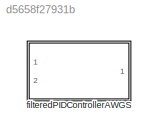
MODEL slx_d5658f27931b
KIND library
CONFIG AbsTol = auto
CONFIG EnableMultiTasking = off
CONFIG FixedStep = auto
CONFIG MaxStep = auto
CONFIG MinStep = auto
CONFIG RelTol = 1e-3
CONFIG SampleTimeConstraint = Unconstrained
CONFIG SolverName = VariableStepAuto
CONFIG StartTime = 0.0
CONFIG StopTime = 10.0
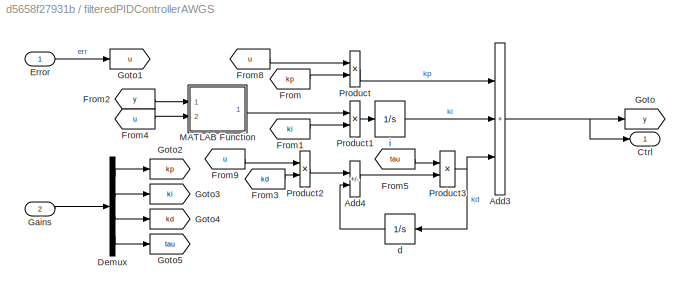
BLOCK [SubSystem] filteredPIDControllerAWGS
  Ports = [2, 1]
  RequestExecContextInheritance = off
BLOCK [Sum] filteredPIDControllerAWGS/Add3
  IconShape = rectangular
  Inputs = +++
  Ports = [3, 1]
BLOCK [Sum] filteredPIDControllerAWGS/Add4
  IconShape = rectangular
  Inputs = +-
  Ports = [2, 1]
BLOCK [Outport] filteredPIDControllerAWGS/Ctrl
  PortDimensions = 1
  VectorParamsAs1DForOutWhenUnconnected = off
BLOCK [Demux] filteredPIDControllerAWGS/Demux
  Ports = [1, 4]
BLOCK [Inport] filteredPIDControllerAWGS/Error
  PortDimensions = 1
BLOCK [From] filteredPIDControllerAWGS/From
  GotoTag = kp
BLOCK [From] filteredPIDControllerAWGS/From1
  GotoTag = ki
BLOCK [From] filteredPIDControllerAWGS/From2
  GotoTag = y
BLOCK [From] filteredPIDControllerAWGS/From3
  GotoTag = kd
BLOCK [From] filteredPIDControllerAWGS/From4
  GotoTag = u
BLOCK [From] filteredPIDControllerAWGS/From5
  GotoTag = tau
BLOCK [From] filteredPIDControllerAWGS/From8
  GotoTag = u
BLOCK [From] filteredPIDControllerAWGS/From9
  GotoTag = u
BLOCK [Inport] filteredPIDControllerAWGS/Gains
  Port = 2
BLOCK [Goto] filteredPIDControllerAWGS/Goto
  GotoTag = y
BLOCK [Goto] filteredPIDControllerAWGS/Goto1
  GotoTag = u
BLOCK [Goto] filteredPIDControllerAWGS/Goto2
  GotoTag = kp
BLOCK [Goto] filteredPIDControllerAWGS/Goto3
  GotoTag = ki
BLOCK [Goto] filteredPIDControllerAWGS/Goto4
  GotoTag = kd
BLOCK [Goto] filteredPIDControllerAWGS/Goto5
  GotoTag = tau
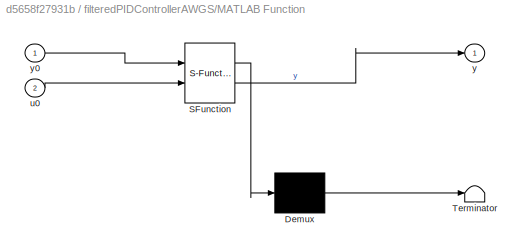
BLOCK [SubSystem] filteredPIDControllerAWGS/MATLAB Function
  ErrorFcn = Stateflow.Translate.translate
  PermitHierarchicalResolution = ExplicitOnly
  Ports = [2, 1]
  RequestExecContextInheritance = off
  SFBlockType = MATLAB Function
  TreatAsAtomicUnit = on
BLOCK [Demux] filteredPIDControllerAWGS/MATLAB Function/ Demux 
  Outputs = 1
  Ports = [1, 1]
BLOCK [S-Function] filteredPIDControllerAWGS/MATLAB Function/ SFunction 
  EnableBusSupport = off
  FunctionName = sf_sfun
  Parameters = cMax,cMin
  PortCounts = [2 2]
  Ports = [2, 2]
  SFcnIsStateOwnerBlock = off
  SFunctionDeploymentMode = off
  Tag = Stateflow S-Function 1
BLOCK [Terminator] filteredPIDControllerAWGS/MATLAB Function/ Terminator 
BLOCK [Inport] filteredPIDControllerAWGS/MATLAB Function/u0
  Port = 2
BLOCK [Outport] filteredPIDControllerAWGS/MATLAB Function/y
BLOCK [Inport] filteredPIDControllerAWGS/MATLAB Function/y0
BLOCK [Product] filteredPIDControllerAWGS/Product
  Ports = [2, 1]
BLOCK [Product] filteredPIDControllerAWGS/Product1
  Ports = [2, 1]
BLOCK [Product] filteredPIDControllerAWGS/Product2
  Ports = [2, 1]
BLOCK [Product] filteredPIDControllerAWGS/Product3
  Inputs = /*
  Ports = [2, 1]
BLOCK [Integrator] filteredPIDControllerAWGS/d
  Ports = [1, 1]
BLOCK [Integrator] filteredPIDControllerAWGS/i
  Ports = [1, 1]
CHART filteredPIDControllerAWGS/MATLAB Function states=1 transitions=1
  STATE_LABEL 'eML_blk_kernel()'
  STATE_LABEL 'SCRIPT:\nfunction y = fcn(y0, u0, cMax, cMin)\n\nif y0 > cMax\n    y1 = cMax; \nelseif y0 < cMin\n    y1 = cMin; \nelse\n    y1 = y0; \nend\n\nsat = y0-y1; \naw = exp(-1e5*sat^2); \ny = aw*u0; '
CHART  states=0 transitions=0
